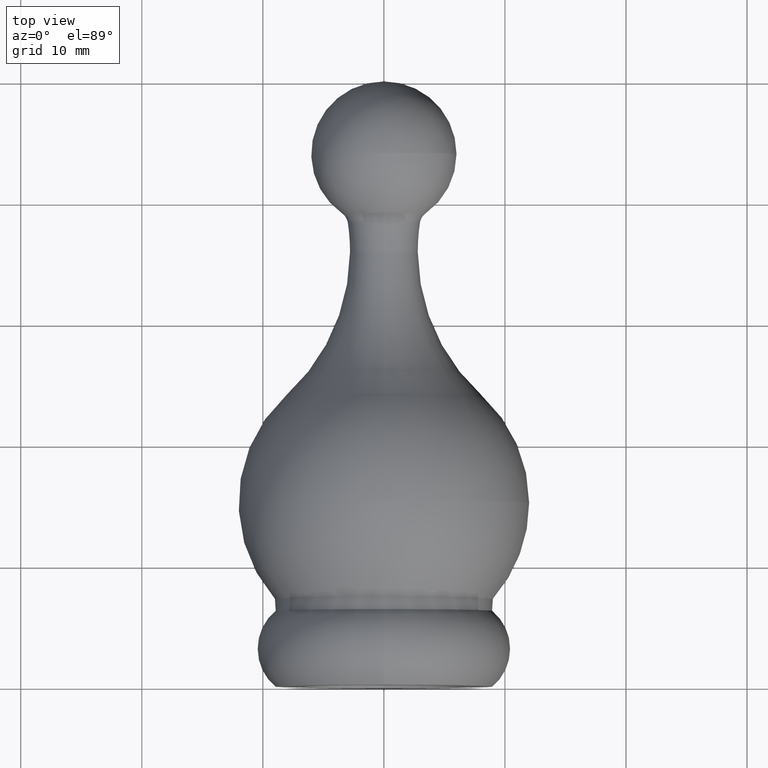
[diagram: clean part render]
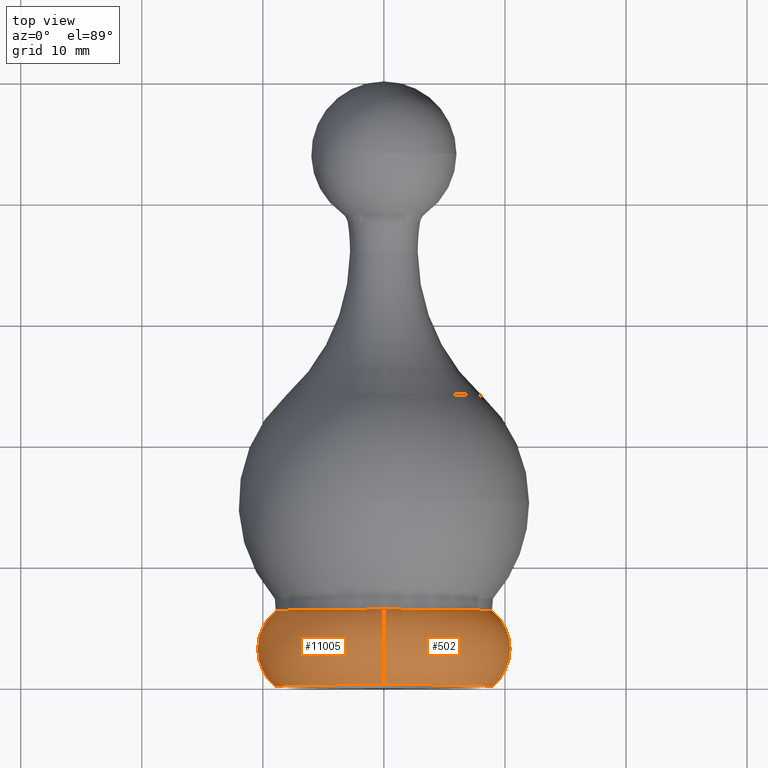
[diagram: same view with one multi-face feature highlighted, each face labeled with its STEP entity id]
A machine part, top view. The highlighted faces form ONE feature: a constant-radius fillet chain: 2 tangent blend faces with common blend radius 4 mm. The faces share edges in the B-rep.
Their STEP definitions:
[1] entity #502 (Torus):
#279 = VERTEX_POINT ( 'NONE', #6481 ) ;
#389 = TOROIDAL_SURFACE ( 'NONE', #7442, 6.500000000000001776, 4.000000000000000000 ) ;
#502 = ADVANCED_FACE ( 'NONE', ( #6240 ), #389, .T. ) ;
#756 = EDGE_LOOP ( 'NONE', ( #4498, #9934, #9835, #6088 ) ) ;
#1304 = AXIS2_PLACEMENT_3D ( 'NONE', #3534, #9638, #4526 ) ;
#1398 = CARTESIAN_POINT ( 'NONE',  ( 0.000000000000000000, 6.244997998398400973, -9.000000000000003553 ) ) ;
#1450 = EDGE_CURVE ( 'NONE', #4287, #3133, #2981, .T. ) ;
#1877 = CARTESIAN_POINT ( 'NONE',  ( 0.000000000000000000, 3.122498999199200487, 0.000000000000000000 ) ) ;
#2013 = CARTESIAN_POINT ( 'NONE',  ( 0.000000000000000000, 0.000000000000000000, 0.000000000000000000 ) ) ;
#2379 = AXIS2_PLACEMENT_3D ( 'NONE', #7764, #7708, #5853 ) ;
#2455 = CIRCLE ( 'NONE', #8026, 9.000000000000003553 ) ;
#2981 = CIRCLE ( 'NONE', #8827, 9.000000000000000000 ) ;
#3128 = CARTESIAN_POINT ( 'NONE',  ( 0.000000000000000000, 0.000000000000000000, -9.000000000000000000 ) ) ;
#3133 = VERTEX_POINT ( 'NONE', #3891 ) ;
#3528 = CIRCLE ( 'NONE', #1304, 4.000000000000000000 ) ;
#3534 = CARTESIAN_POINT ( 'NONE',  ( 0.000000000000000000, 3.122498999199200487, -6.500000000000001776 ) ) ;
#3594 = DIRECTION ( 'NONE',  ( 0.000000000000000000, 0.000000000000000000, -1.000000000000000000 ) ) ;
#3891 = CARTESIAN_POINT ( 'NONE',  ( 1.102182119232617714E-15, 0.000000000000000000, 9.000000000000000000 ) ) ;
#4287 = VERTEX_POINT ( 'NONE', #3128 ) ;
#4498 = ORIENTED_EDGE ( 'NONE', *, *, #6967, .T. ) ;
#4526 = DIRECTION ( 'NONE',  ( 0.000000000000000000, 0.000000000000000000, 1.000000000000000000 ) ) ;
#5316 = EDGE_CURVE ( 'NONE', #279, #3133, #7537, .T. ) ;
#5490 = DIRECTION ( 'NONE',  ( 0.000000000000000000, 0.000000000000000000, -1.000000000000000000 ) ) ;
#5853 = DIRECTION ( 'NONE',  ( -1.224646799147353207E-16, 0.000000000000000000, -1.000000000000000000 ) ) ;
#6088 = ORIENTED_EDGE ( 'NONE', *, *, #8966, .F. ) ;
#6240 = FACE_OUTER_BOUND ( 'NONE', #756, .T. ) ;
#6481 = CARTESIAN_POINT ( 'NONE',  ( 1.102182119232618108E-15, 6.244997998398400973, 9.000000000000003553 ) ) ;
#6967 = EDGE_CURVE ( 'NONE', #10495, #279, #2455, .T. ) ;
#7127 = DIRECTION ( 'NONE',  ( -0.000000000000000000, -1.000000000000000000, -0.000000000000000000 ) ) ;
#7442 = AXIS2_PLACEMENT_3D ( 'NONE', #1877, #7127, #8998 ) ;
#7537 = CIRCLE ( 'NONE', #2379, 4.000000000000000000 ) ;
#7708 = DIRECTION ( 'NONE',  ( 1.000000000000000000, 0.000000000000000000, -1.224646799147353207E-16 ) ) ;
#7764 = CARTESIAN_POINT ( 'NONE',  ( 7.960204194457797449E-16, 3.122498999199200487, 6.500000000000001776 ) ) ;
#8026 = AXIS2_PLACEMENT_3D ( 'NONE', #9567, #9704, #3594 ) ;
#8827 = AXIS2_PLACEMENT_3D ( 'NONE', #2013, #10777, #5490 ) ;
#8966 = EDGE_CURVE ( 'NONE', #10495, #4287, #3528, .T. ) ;
#8998 = DIRECTION ( 'NONE',  ( 0.000000000000000000, 0.000000000000000000, -1.000000000000000000 ) ) ;
#9567 = CARTESIAN_POINT ( 'NONE',  ( 0.000000000000000000, 6.244997998398400973, 0.000000000000000000 ) ) ;
#9638 = DIRECTION ( 'NONE',  ( -1.000000000000000000, 0.000000000000000000, 0.000000000000000000 ) ) ;
#9704 = DIRECTION ( 'NONE',  ( -0.000000000000000000, -1.000000000000000000, -0.000000000000000000 ) ) ;
#9835 = ORIENTED_EDGE ( 'NONE', *, *, #1450, .F. ) ;
#9934 = ORIENTED_EDGE ( 'NONE', *, *, #5316, .T. ) ;
#10495 = VERTEX_POINT ( 'NONE', #1398 ) ;
#10777 = DIRECTION ( 'NONE',  ( -0.000000000000000000, -1.000000000000000000, -0.000000000000000000 ) ) ;
[2] entity #11005 (Torus):
#48 = DIRECTION ( 'NONE',  ( 0.000000000000000000, 0.000000000000000000, -1.000000000000000000 ) ) ;
#279 = VERTEX_POINT ( 'NONE', #6481 ) ;
#904 = FACE_OUTER_BOUND ( 'NONE', #3948, .T. ) ;
#966 = ORIENTED_EDGE ( 'NONE', *, *, #5316, .F. ) ;
#1304 = AXIS2_PLACEMENT_3D ( 'NONE', #3534, #9638, #4526 ) ;
#1398 = CARTESIAN_POINT ( 'NONE',  ( 0.000000000000000000, 6.244997998398400973, -9.000000000000003553 ) ) ;
#1684 = ORIENTED_EDGE ( 'NONE', *, *, #8966, .T. ) ;
#1705 = DIRECTION ( 'NONE',  ( 0.000000000000000000, 0.000000000000000000, -1.000000000000000000 ) ) ;
#2379 = AXIS2_PLACEMENT_3D ( 'NONE', #7764, #7708, #5853 ) ;
#2534 = DIRECTION ( 'NONE',  ( -0.000000000000000000, -1.000000000000000000, -0.000000000000000000 ) ) ;
#2559 = AXIS2_PLACEMENT_3D ( 'NONE', #9077, #9890, #5461 ) ;
#2568 = ORIENTED_EDGE ( 'NONE', *, *, #9401, .F. ) ;
#3128 = CARTESIAN_POINT ( 'NONE',  ( 0.000000000000000000, 0.000000000000000000, -9.000000000000000000 ) ) ;
#3133 = VERTEX_POINT ( 'NONE', #3891 ) ;
#3528 = CIRCLE ( 'NONE', #1304, 4.000000000000000000 ) ;
#3534 = CARTESIAN_POINT ( 'NONE',  ( 0.000000000000000000, 3.122498999199200487, -6.500000000000001776 ) ) ;
#3891 = CARTESIAN_POINT ( 'NONE',  ( 1.102182119232617714E-15, 0.000000000000000000, 9.000000000000000000 ) ) ;
#3948 = EDGE_LOOP ( 'NONE', ( #966, #4134, #1684, #2568 ) ) ;
#4113 = CIRCLE ( 'NONE', #9497, 9.000000000000003553 ) ;
#4134 = ORIENTED_EDGE ( 'NONE', *, *, #8813, .T. ) ;
#4287 = VERTEX_POINT ( 'NONE', #3128 ) ;
#4526 = DIRECTION ( 'NONE',  ( 0.000000000000000000, 0.000000000000000000, 1.000000000000000000 ) ) ;
#5316 = EDGE_CURVE ( 'NONE', #279, #3133, #7537, .T. ) ;
#5461 = DIRECTION ( 'NONE',  ( 0.000000000000000000, 0.000000000000000000, -1.000000000000000000 ) ) ;
#5853 = DIRECTION ( 'NONE',  ( -1.224646799147353207E-16, 0.000000000000000000, -1.000000000000000000 ) ) ;
#6481 = CARTESIAN_POINT ( 'NONE',  ( 1.102182119232618108E-15, 6.244997998398400973, 9.000000000000003553 ) ) ;
#7537 = CIRCLE ( 'NONE', #2379, 4.000000000000000000 ) ;
#7708 = DIRECTION ( 'NONE',  ( 1.000000000000000000, 0.000000000000000000, -1.224646799147353207E-16 ) ) ;
#7764 = CARTESIAN_POINT ( 'NONE',  ( 7.960204194457797449E-16, 3.122498999199200487, 6.500000000000001776 ) ) ;
#7924 = CARTESIAN_POINT ( 'NONE',  ( 0.000000000000000000, 0.000000000000000000, 0.000000000000000000 ) ) ;
#8813 = EDGE_CURVE ( 'NONE', #279, #10495, #4113, .T. ) ;
#8966 = EDGE_CURVE ( 'NONE', #10495, #4287, #3528, .T. ) ;
#9077 = CARTESIAN_POINT ( 'NONE',  ( 0.000000000000000000, 3.122498999199200487, 0.000000000000000000 ) ) ;
#9082 = AXIS2_PLACEMENT_3D ( 'NONE', #7924, #2534, #48 ) ;
#9401 = EDGE_CURVE ( 'NONE', #3133, #4287, #10893, .T. ) ;
#9497 = AXIS2_PLACEMENT_3D ( 'NONE', #11162, #11260, #1705 ) ;
#9528 = TOROIDAL_SURFACE ( 'NONE', #2559, 6.500000000000001776, 4.000000000000000000 ) ;
#9638 = DIRECTION ( 'NONE',  ( -1.000000000000000000, 0.000000000000000000, 0.000000000000000000 ) ) ;
#9890 = DIRECTION ( 'NONE',  ( -0.000000000000000000, -1.000000000000000000, -0.000000000000000000 ) ) ;
#10495 = VERTEX_POINT ( 'NONE', #1398 ) ;
#10893 = CIRCLE ( 'NONE', #9082, 9.000000000000000000 ) ;
#11005 = ADVANCED_FACE ( 'NONE', ( #904 ), #9528, .T. ) ;
#11162 = CARTESIAN_POINT ( 'NONE',  ( 0.000000000000000000, 6.244997998398400973, 0.000000000000000000 ) ) ;
#11260 = DIRECTION ( 'NONE',  ( -0.000000000000000000, -1.000000000000000000, -0.000000000000000000 ) ) ;